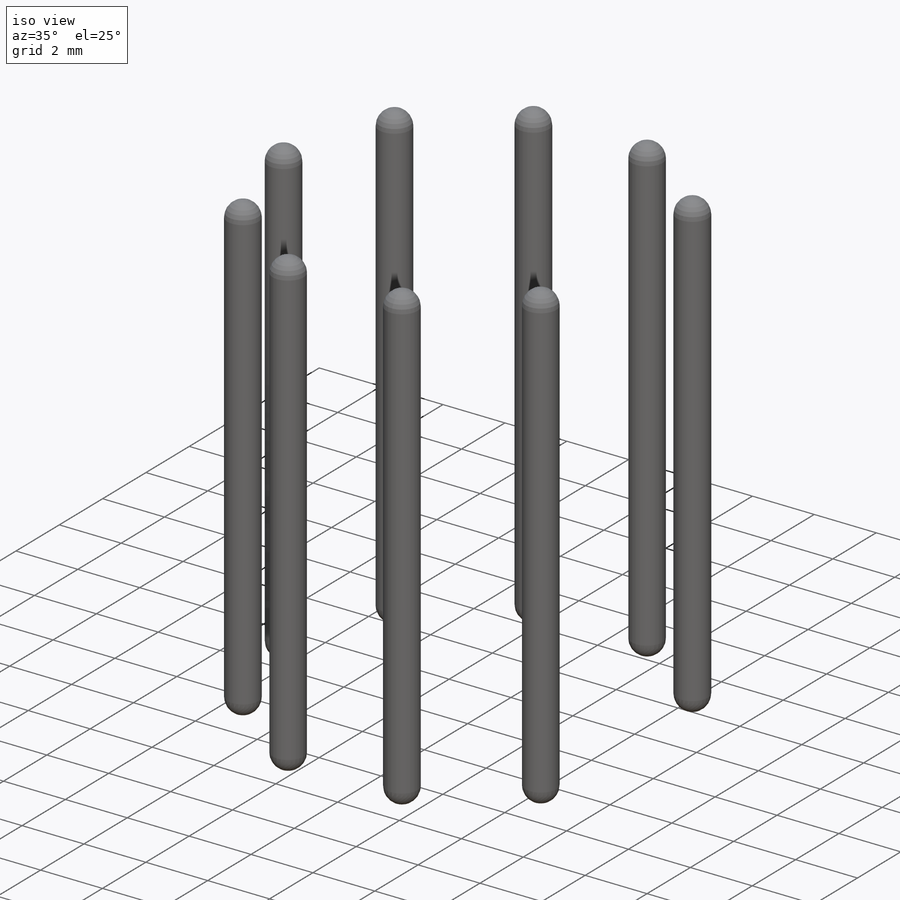
[diagram: iso view]
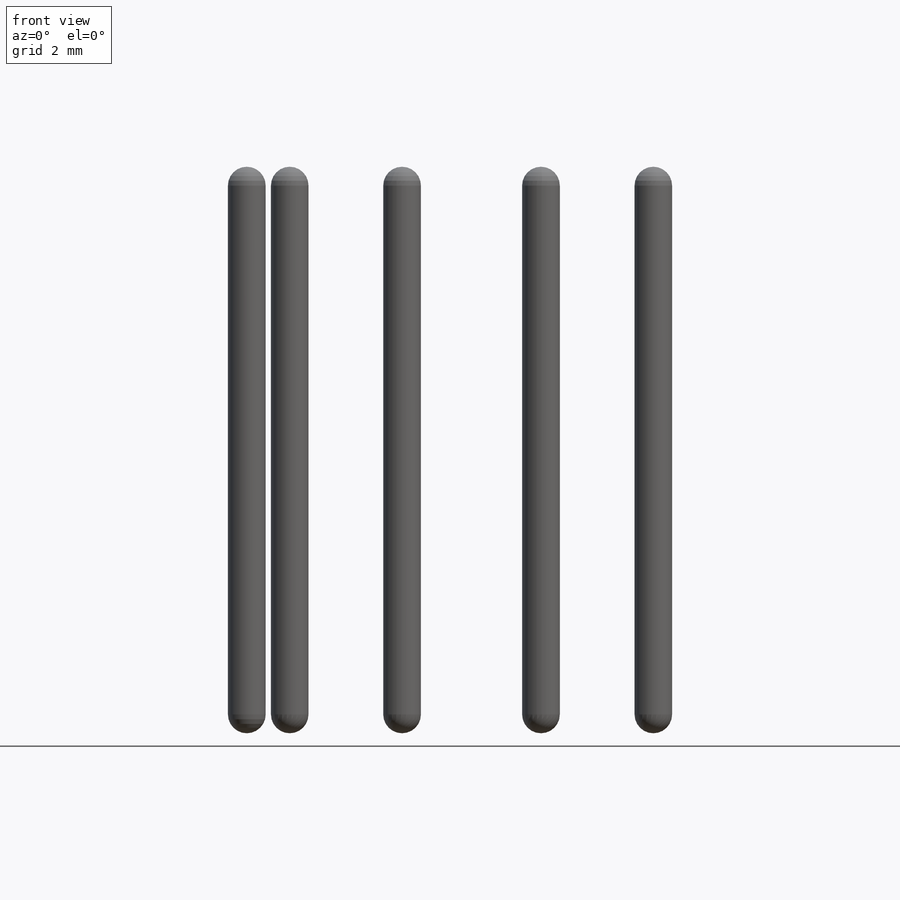
[diagram: front view]
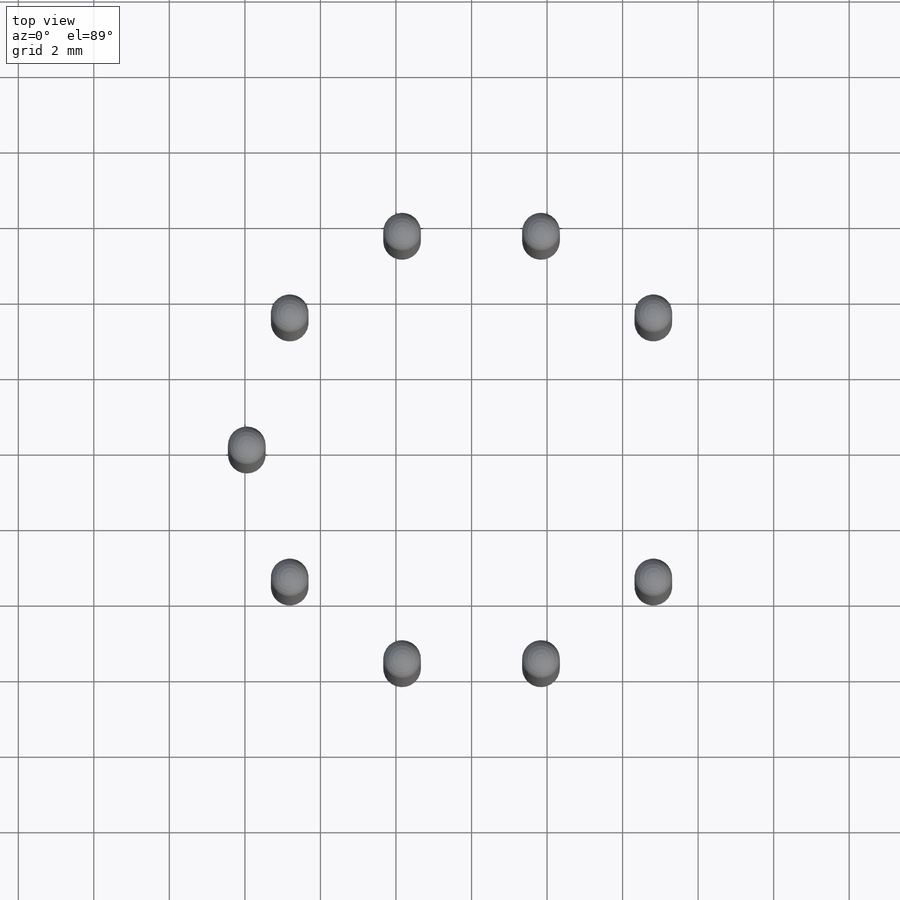
[diagram: top view]
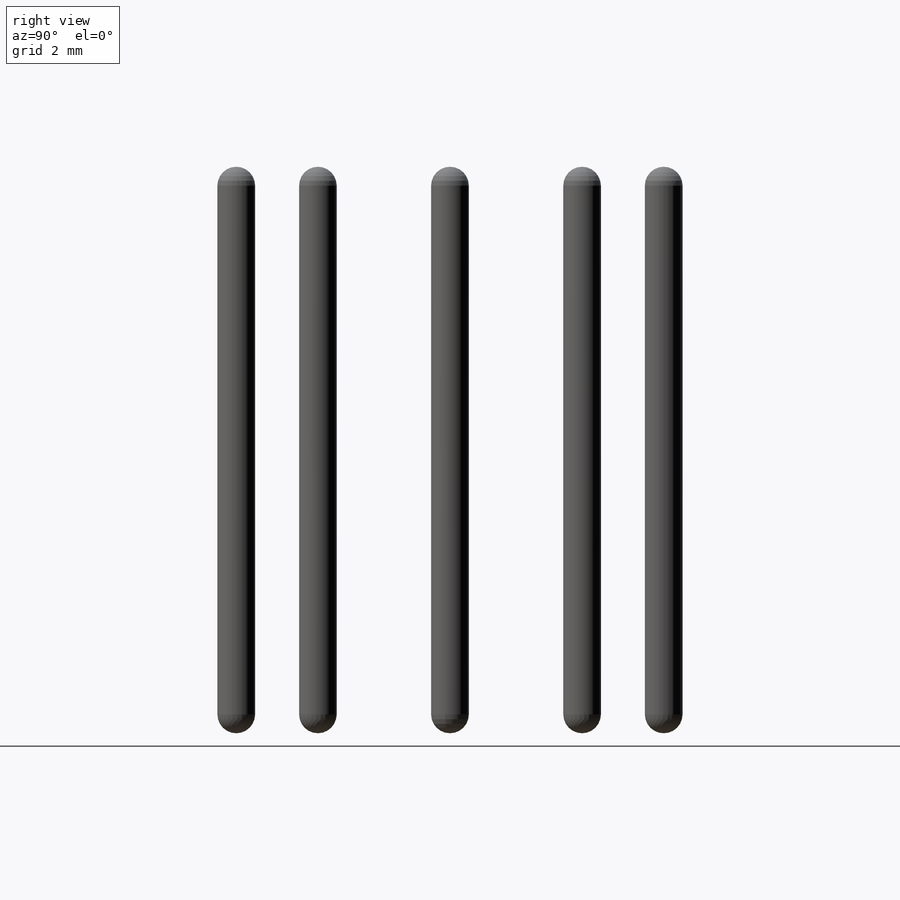
[diagram: right view]
SOLIDWORKS PART (.sldprt)
format: sldprt  version: not decoded by parser v0  size: 262,144 bytes
history: native  units: mm
features: plane x9, sketch x9, revolve x9, material x1 (+12 scaffold rows collapsed)
feature tree (40):
  scaffold x12  (default folders/planes/origin — collapsed)
  material  "Pure Gold"
  plane  "Plane1"
  sketch  "Sketch1"
  revolve  "Revolve1"  Angle=360deg
  plane  "Plane2"
  sketch  "Sketch2"
  revolve  "Revolve2"  Angle=360deg
  plane  "Plane3"
  sketch  "Sketch3"
  revolve  "Revolve3"  Angle=360deg
  plane  "Plane4"
  sketch  "Sketch4"
  revolve  "Revolve4"  Angle=360deg
  plane  "Plane5"
  sketch  "Sketch5"
  revolve  "Revolve5"  Angle=360deg
  plane  "Plane6"
  sketch  "Sketch6"
  revolve  "Revolve6"  Angle=360deg
  plane  "Plane7"
  sketch  "Sketch7"
  revolve  "Revolve7"  Angle=360deg
  plane  "Plane8"
  sketch  "Sketch8"
  revolve  "Revolve8"  Angle=360deg
  plane  "Plane9"
  sketch  "Sketch9"
  revolve  "Revolve9"  Angle=360deg
decode coverage: 9 of 18 modeling features carry decoded parameters
note: suppression state not decoded; provenance and decode notes live in map.json
